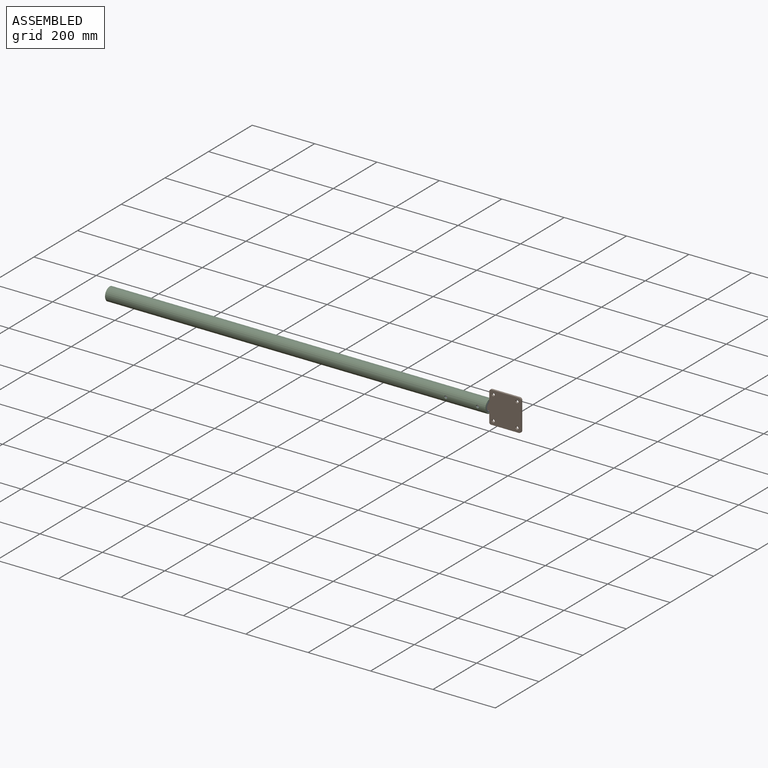
[diagram: assembled view]
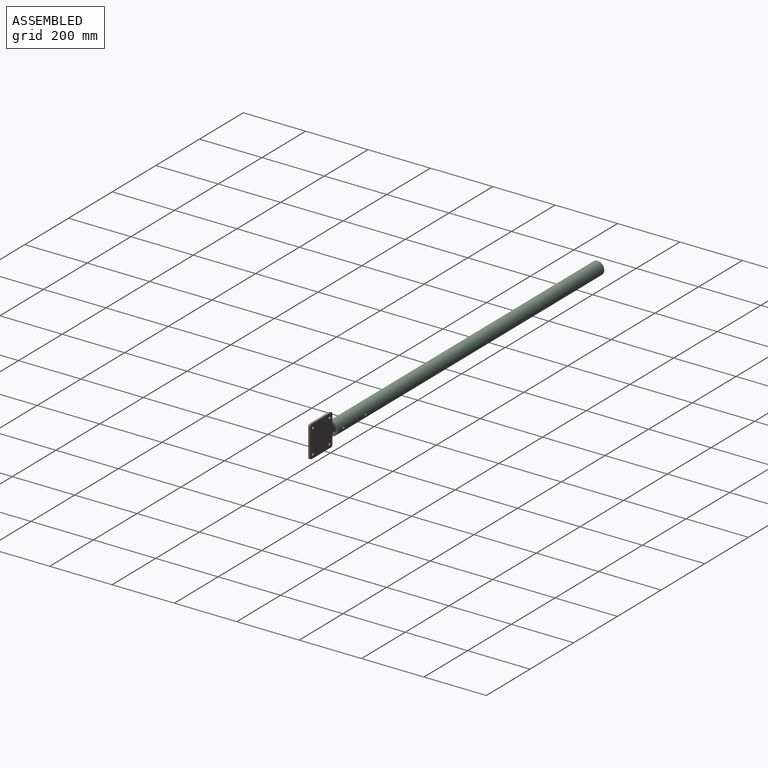
[diagram: assembled view, second angle]
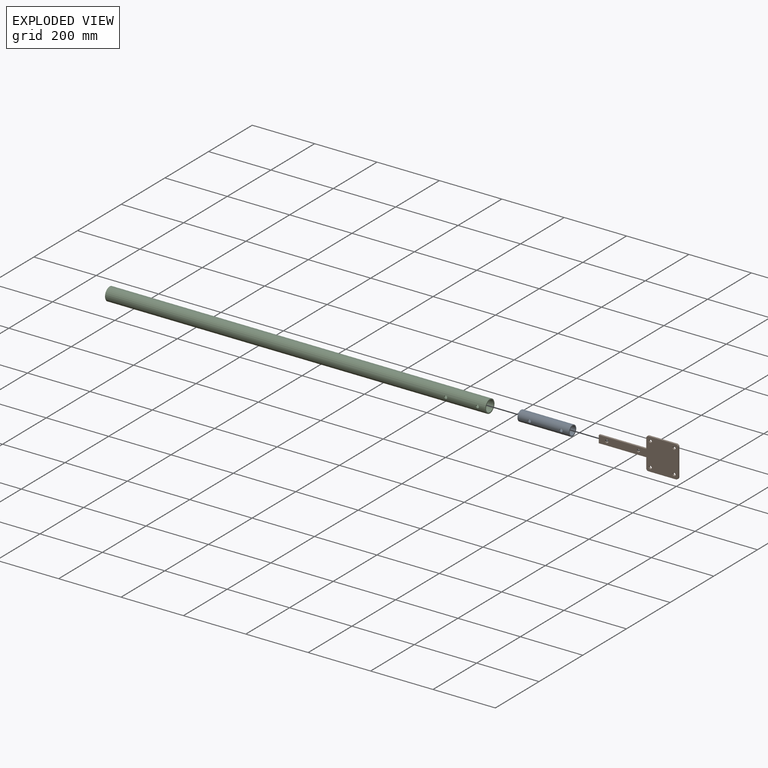
[diagram: exploded view]
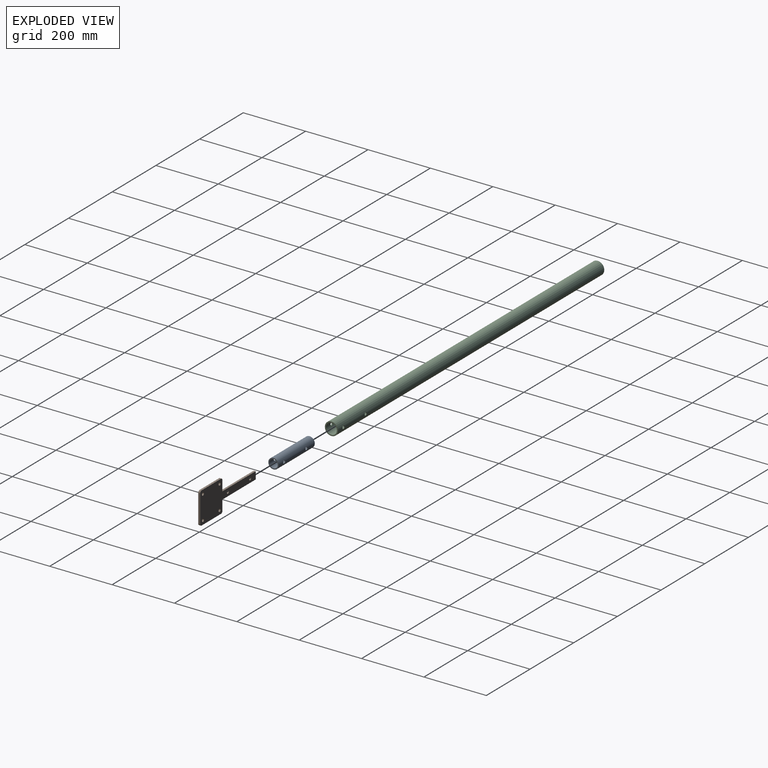
[diagram: exploded view, second angle]
ASSEMBLY  parts=3 mates=4
PART A: 8 faces, bbox 33.4x165.1x33.4 mm
  f0: cylinder r=13.32mm len=165.1mm, axis (0,-1,0), area 13530.5mm2, adj f2,f3,f4,f5,f6,f7
  f1: cylinder r=16.7mm len=165.1mm, axis (0,-1,0), area 17036.5mm2, adj f2,f3,f4,f5,f6,f7
  f2: plane 33.4x33.4mm, normal (0,1,0), area 318.6mm2, adj f0,f1
  f3: plane 33.4x33.4mm, normal (0,-1,0), area 318.6mm2, adj f0,f1
  f4: cylinder r=4.76mm len=9.53mm, axis (1,0,0), area 103.8mm2, adj f0,f1
  f5: cylinder r=4.76mm len=9.53mm, axis (1,0,0), area 103.8mm2, adj f0,f1
  f6: cylinder r=4.76mm len=9.53mm, axis (1,0,0), area 103.8mm2, adj f0,f1
  f7: cylinder r=4.76mm len=9.53mm, axis (1,0,0), area 103.8mm2, adj f0,f1
PART B: 20 faces, bbox 254x6.4x101.6 mm
  f0: plane 32.54x6.35mm, normal (-1,0,0), area 206.7mm2, adj f1,f13,f18,f19
  f1: plane 152.4x6.35mm, normal (0,0,1), area 967.7mm2, adj f0,f2,f18,f19
  f2: plane 23.81x6.35mm, normal (-1,0,0), area 151.2mm2, adj f1,f3,f18,f19
  f3: plane 152.4x6.35mm, normal (0,0,-1), area 967.7mm2, adj f2,f4,f18,f19
  f4: plane 32.54x6.35mm, normal (-1,0,0), area 206.7mm2, adj f3,f5,f18,f19
  f5: cylinder r=6.35mm len=6.35mm, axis (0,-1,0), area 63.3mm2, adj f4,f6,f18,f19
  f6: plane 88.9x6.35mm, normal (0,0,-1), area 564.5mm2, adj f5,f7,f18,f19
  f7: cylinder r=6.35mm len=6.35mm, axis (0,-1,0), area 63.3mm2, adj f6,f8,f18,f19
  f8: plane 88.9x6.35mm, normal (1,0,0), area 564.5mm2, adj f7,f9,f18,f19
  f9: cylinder r=6.35mm len=6.35mm, axis (0,-1,0), area 63.3mm2, adj f8,f10,f18,f19
  f10: plane 88.9x6.35mm, normal (0,0,1), area 564.5mm2, adj f9,f13,f18,f19
  f11: cylinder r=4.76mm len=9.53mm, axis (0,-1,0), area 190mm2, adj f18,f19
  f12: cylinder r=4.76mm len=9.53mm, axis (0,-1,0), area 190mm2, adj f18,f19
  f13: cylinder r=6.35mm len=6.35mm, axis (0,-1,0), area 63.3mm2, adj f0,f10,f18,f19
  f14: cylinder r=4.76mm len=9.53mm, axis (0,-1,0), area 190mm2, adj f18,f19
  f15: cylinder r=4.76mm len=9.53mm, axis (0,-1,0), area 190mm2, adj f18,f19
  f16: cylinder r=4.76mm len=9.53mm, axis (0,-1,0), area 190mm2, adj f18,f19
  f17: cylinder r=4.76mm len=9.53mm, axis (0,-1,0), area 190mm2, adj f18,f19
  f18: plane 254x101.6mm, normal (0,1,0), area 13489.4mm2, adj f0,f1,f2,f3,f4,f5,f6,f7
  f19: plane 254x101.6mm, normal (0,-1,0), area 13489.4mm2, adj f0,f1,f2,f3,f4,f5,f6,f7
PART C: 8 faces, bbox 42.2x1219.2x42.2 mm
  f0: cylinder r=17.53mm len=1219.2mm, axis (0,-1,0), area 133969.7mm2, adj f2,f3,f4,f5,f6,f7
  f1: cylinder r=21.08mm len=1219.2mm, axis (0,-1,0), area 161211.3mm2, adj f2,f3,f4,f5,f6,f7
  f2: plane 42.16x42.16mm, normal (0,1,0), area 431.3mm2, adj f0,f1
  f3: plane 42.16x42.16mm, normal (0,-1,0), area 431.3mm2, adj f0,f1
  f4: cylinder r=4.76mm len=9.53mm, axis (1,0,0), area 108.1mm2, adj f0,f1
  f5: cylinder r=4.76mm len=9.53mm, axis (1,0,0), area 108.1mm2, adj f0,f1
  f6: cylinder r=4.76mm len=9.53mm, axis (1,0,0), area 108.1mm2, adj f0,f1
  f7: cylinder r=4.76mm len=9.53mm, axis (1,0,0), area 108.1mm2, adj f0,f1
PLACE A rot(axis=(0.71,-0.71,0),180deg) t=(0,3.21,0)mm
PLACE B at identity
PLACE C rot(axis=(0.71,-0.71,0),180deg) t=(0,3.17,0)mm
MATE revolute C.f6 <-> A.f6  axis (0,-1,0) through (-25.4,-15.81,0)mm
MATE planar A.f0 <-> B.f0  axis (1,0,0) through (0,3.21,0)mm
MATE planar C.f0 <-> B.f0  axis (1,0,0) through (0,3.17,0)mm
MATE revolute B.f11 <-> A.f4  axis (0,-1,0) through (-127,0,0)mm
